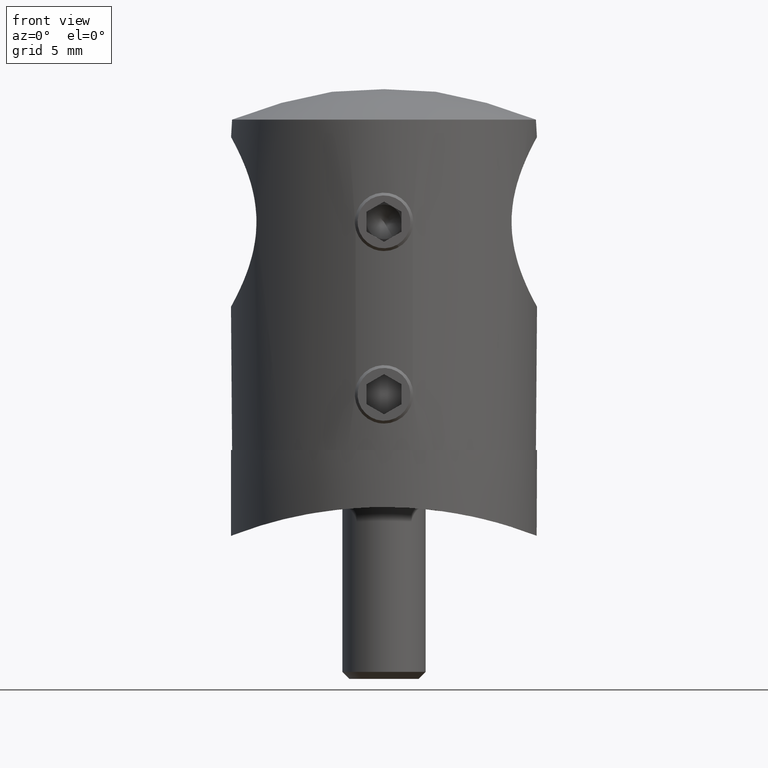
[diagram: clean part render]
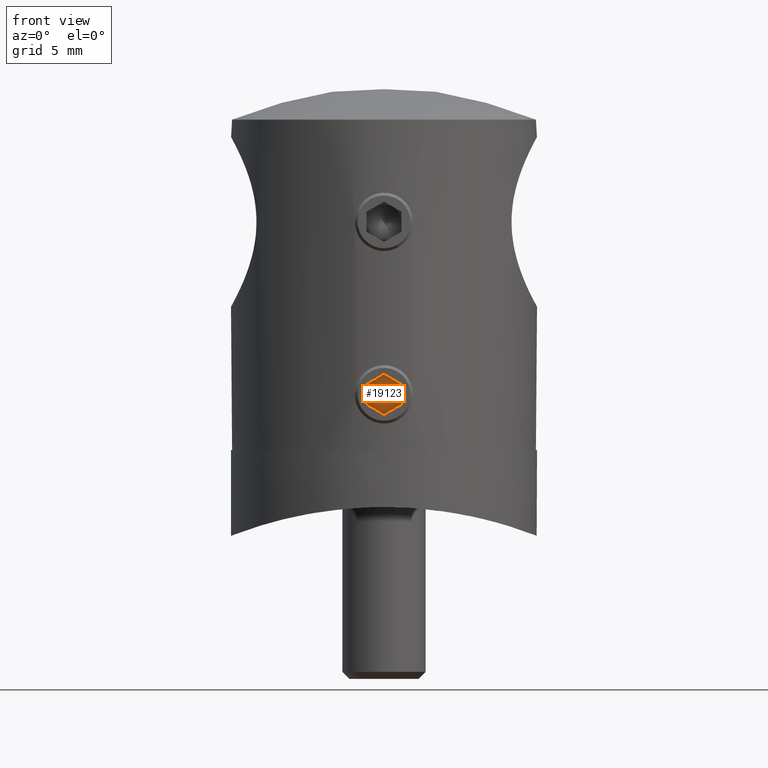
[diagram: same view with one face highlighted and labeled with its STEP entity id]
A machine part, front view. The second image highlights one B-rep face of the part: STEP entity #19123.
In plain terms, the highlighted planar face has unit normal (0, -1, 0).
Its self-contained STEP definition (entity closure, byte-faithful):
#240 = LINE ( 'NONE', #13536, #3882 ) ;
#432 = DIRECTION ( 'NONE',  ( 0.000000000000000000, 1.000000000000000000, -5.551115123125782702E-17 ) ) ;
#1286 = VERTEX_POINT ( 'NONE', #19679 ) ;
#1369 = VERTEX_POINT ( 'NONE', #18217 ) ;
#1804 = CARTESIAN_POINT ( 'NONE',  ( 2.999999999999999112, 0.7216878364870323859, -1.250000000000001554 ) ) ;
#2507 = PLANE ( 'NONE',  #8892 ) ;
#3113 = CARTESIAN_POINT ( 'NONE',  ( 2.999999999999999112, 0.7216878364870328300, 1.249999999999999334 ) ) ;
#3127 = ORIENTED_EDGE ( 'NONE', *, *, #19200, .T. ) ;
#3539 = LINE ( 'NONE', #14301, #5378 ) ;
#3882 = VECTOR ( 'NONE', #15134, 1000.000000000000000 ) ;
#3897 = DIRECTION ( 'NONE',  ( -0.000000000000000000, 0.000000000000000000, -1.000000000000000000 ) ) ;
#4884 = DIRECTION ( 'NONE',  ( 0.000000000000000000, -1.000000000000000000, 0.000000000000000000 ) ) ;
#5027 = EDGE_CURVE ( 'NONE', #1286, #13112, #9282, .T. ) ;
#5378 = VECTOR ( 'NONE', #17575, 1000.000000000000227 ) ;
#5549 = CARTESIAN_POINT ( 'NONE',  ( 2.999999999999999112, -0.7216878364870332740, 1.249999999999999334 ) ) ;
#6659 = DIRECTION ( 'NONE',  ( 0.000000000000000000, 0.4999999999999999445, 0.8660254037844385966 ) ) ;
#6784 = VECTOR ( 'NONE', #6659, 1000.000000000000114 ) ;
#7157 = CARTESIAN_POINT ( 'NONE',  ( 2.999999999999999112, 1.443375672974064772, 4.336808689942017736E-16 ) ) ;
#7971 = VERTEX_POINT ( 'NONE', #16232 ) ;
#8892 = AXIS2_PLACEMENT_3D ( 'NONE', #19167, #9076, #3897 ) ;
#9076 = DIRECTION ( 'NONE',  ( 1.000000000000000000, 0.000000000000000000, 0.000000000000000000 ) ) ;
#9282 = LINE ( 'NONE', #3113, #18884 ) ;
#10053 = ORIENTED_EDGE ( 'NONE', *, *, #5027, .T. ) ;
#10408 = DIRECTION ( 'NONE',  ( 0.000000000000000000, -0.4999999999999998890, 0.8660254037844387076 ) ) ;
#10597 = ORIENTED_EDGE ( 'NONE', *, *, #14972, .T. ) ;
#10934 = LINE ( 'NONE', #1804, #6784 ) ;
#11013 = VERTEX_POINT ( 'NONE', #21522 ) ;
#11150 = ORIENTED_EDGE ( 'NONE', *, *, #20244, .T. ) ;
#12593 = EDGE_LOOP ( 'NONE', ( #3127, #10597, #16710, #13174, #11150, #10053 ) ) ;
#12708 = EDGE_CURVE ( 'NONE', #11013, #1369, #10934, .T. ) ;
#13036 = EDGE_CURVE ( 'NONE', #15436, #11013, #17430, .T. ) ;
#13112 = VERTEX_POINT ( 'NONE', #5549 ) ;
#13174 = ORIENTED_EDGE ( 'NONE', *, *, #12708, .T. ) ;
#13534 = VECTOR ( 'NONE', #432, 1000.000000000000000 ) ;
#13536 = CARTESIAN_POINT ( 'NONE',  ( 2.999999999999999112, -1.443375672974066326, -8.673617379884035472E-16 ) ) ;
#14301 = CARTESIAN_POINT ( 'NONE',  ( 2.999999999999999112, -0.7216878364870332740, 1.249999999999999334 ) ) ;
#14972 = EDGE_CURVE ( 'NONE', #7971, #15436, #240, .T. ) ;
#15134 = DIRECTION ( 'NONE',  ( -0.000000000000000000, 0.4999999999999996114, -0.8660254037844388186 ) ) ;
#15436 = VERTEX_POINT ( 'NONE', #18628 ) ;
#16232 = CARTESIAN_POINT ( 'NONE',  ( 2.999999999999999112, -1.443375672974066326, -8.673617379884035472E-16 ) ) ;
#16710 = ORIENTED_EDGE ( 'NONE', *, *, #13036, .T. ) ;
#17079 = FACE_OUTER_BOUND ( 'NONE', #12593, .T. ) ;
#17327 = LINE ( 'NONE', #7157, #18893 ) ;
#17430 = LINE ( 'NONE', #20382, #13534 ) ;
#17575 = DIRECTION ( 'NONE',  ( 0.000000000000000000, -0.5000000000000000000, -0.8660254037844385966 ) ) ;
#18217 = CARTESIAN_POINT ( 'NONE',  ( 2.999999999999999112, 1.443375672974064772, 4.336808689942017736E-16 ) ) ;
#18628 = CARTESIAN_POINT ( 'NONE',  ( 2.999999999999999112, -0.7216878364870338292, -1.249999999999999778 ) ) ;
#18884 = VECTOR ( 'NONE', #4884, 1000.000000000000000 ) ;
#18893 = VECTOR ( 'NONE', #10408, 1000.000000000000000 ) ;
#19123 = ADVANCED_FACE ( 'NONE', ( #17079 ), #2507, .T. ) ;
#19167 = CARTESIAN_POINT ( 'NONE',  ( 2.999999999999999112, -2.165063509461095936, -1.249999999999999778 ) ) ;
#19200 = EDGE_CURVE ( 'NONE', #13112, #7971, #3539, .T. ) ;
#19679 = CARTESIAN_POINT ( 'NONE',  ( 2.999999999999999112, 0.7216878364870328300, 1.249999999999999334 ) ) ;
#20244 = EDGE_CURVE ( 'NONE', #1369, #1286, #17327, .T. ) ;
#20382 = CARTESIAN_POINT ( 'NONE',  ( 2.999999999999999112, -0.7216878364870338292, -1.249999999999999778 ) ) ;
#21522 = CARTESIAN_POINT ( 'NONE',  ( 2.999999999999999112, 0.7216878364870323859, -1.250000000000001554 ) ) ;